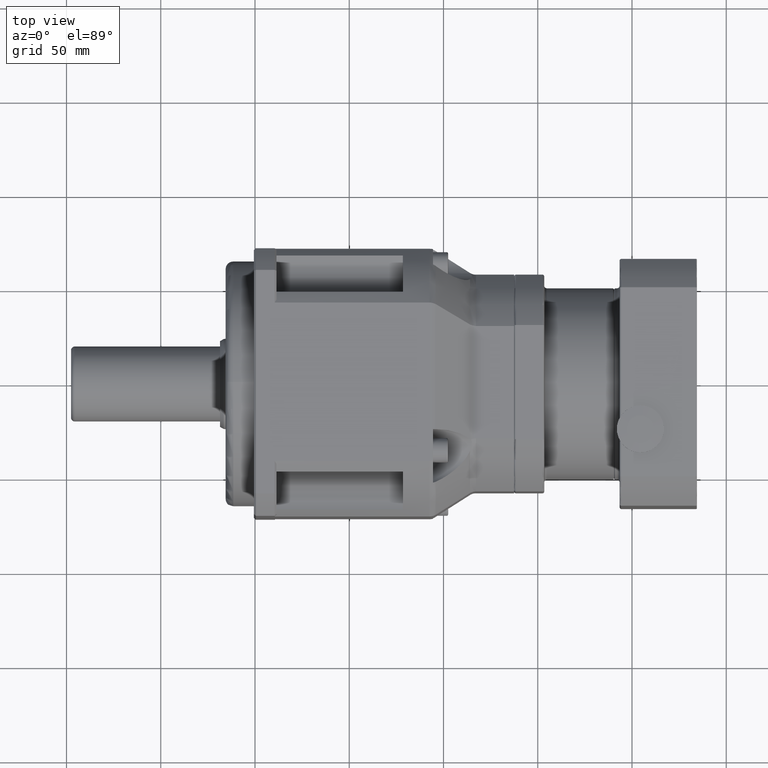
[diagram: clean part render]
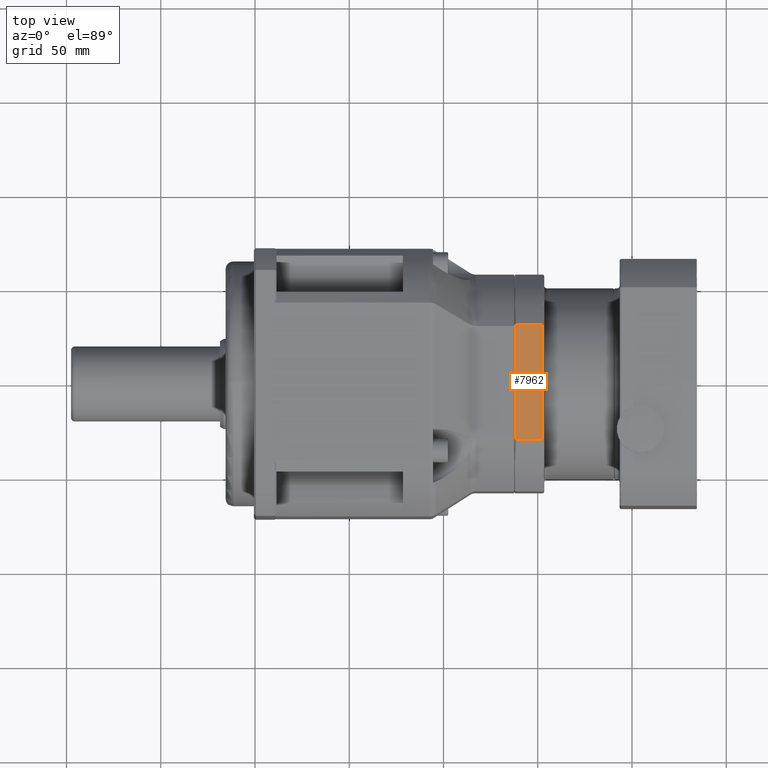
[diagram: same view with one face highlighted and labeled with its STEP entity id]
A machine part, top view. The second image highlights one B-rep face of the part: STEP entity #7962.
In plain terms, the highlighted planar face has unit normal (0, -0, 1).
Its self-contained STEP definition (entity closure, byte-faithful):
#393=LINE('',#12693,#780);
#397=LINE('',#12740,#784);
#403=LINE('',#12813,#790);
#406=LINE('',#12905,#793);
#780=VECTOR('',#10104,60.6217782649106);
#784=VECTOR('',#10126,14.);
#790=VECTOR('',#10146,60.6217782649106);
#793=VECTOR('',#10199,14.);
#1307=PLANE('',#8721);
#1965=FACE_OUTER_BOUND('',#2656,.T.);
#2656=EDGE_LOOP('',(#5944,#5945,#5946,#5947));
#3719=VERTEX_POINT('',#12659);
#3721=VERTEX_POINT('',#12678);
#3727=VERTEX_POINT('',#12738);
#3731=VERTEX_POINT('',#12798);
#4530=EDGE_CURVE('',#3721,#3719,#393,.T.);
#4541=EDGE_CURVE('',#3721,#3727,#397,.T.);
#4552=EDGE_CURVE('',#3731,#3727,#403,.T.);
#4567=EDGE_CURVE('',#3731,#3719,#406,.T.);
#5944=ORIENTED_EDGE('',*,*,#4530,.F.);
#5945=ORIENTED_EDGE('',*,*,#4541,.T.);
#5946=ORIENTED_EDGE('',*,*,#4552,.F.);
#5947=ORIENTED_EDGE('',*,*,#4567,.T.);
#7962=ADVANCED_FACE('',(#1965),#1307,.T.);
#8721=AXIS2_PLACEMENT_3D('',#12908,#10203,#10204);
#10104=DIRECTION('',(1.49770352837684E-21,1.,7.43366720835975E-16));
#10126=DIRECTION('',(1.,-1.49770352751513E-21,-1.15918820918505E-15));
#10146=DIRECTION('',(-1.49770352837684E-21,-1.,-7.43366720835975E-16));
#10199=DIRECTION('',(-1.,1.49770352751513E-21,1.15918820918505E-15));
#10203=DIRECTION('center_axis',(1.15918820918505E-15,-7.43366720835975E-16,
1.));
#10204=DIRECTION('ref_axis',(0.,1.,7.105427357601E-16));
#12659=CARTESIAN_POINT('',(-111.559385272836,-119.999115463724,-19.5025259929323));
#12678=CARTESIAN_POINT('',(-111.559385272836,-180.620893728635,-19.5025259929323));
#12693=CARTESIAN_POINT('',(-111.559385272836,-179.060004596179,-19.5025259929323));
#12738=CARTESIAN_POINT('',(-97.5593852728364,-180.620893728635,-19.5025259929323));
#12740=CARTESIAN_POINT('',(-59.5593852728364,-180.620893728635,-19.5025259929324));
#12798=CARTESIAN_POINT('',(-97.5593852728364,-119.999115463724,-19.5025259929323));
#12813=CARTESIAN_POINT('',(-97.5593852728364,-179.060004596179,-19.5025259929324));
#12905=CARTESIAN_POINT('',(-59.5593852728364,-119.999115463724,-19.5025259929324));
#12908=CARTESIAN_POINT('Origin',(-96.5593852728364,-207.810004596179,-19.5025259929324));